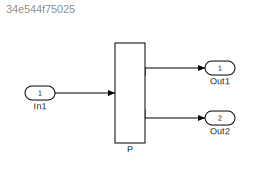
MODEL slx_34e544f75025
KIND model
CONFIG AbsTol = auto
CONFIG EnableMultiTasking = off
CONFIG FixedStep = auto
CONFIG MaxStep = auto
CONFIG MinStep = auto
CONFIG RelTol = 1e-3
CONFIG SampleTimeConstraint = Unconstrained
CONFIG Solver = FixedStepDiscrete
CONFIG SolverName = FixedStepDiscrete
CONFIG StartTime = 0.0
CONFIG StopTime = 10.0
BLOCK [Inport] In1
  IconDisplay = Port number
  PortDimensions = 3
BLOCK [Outport] Out1
  IconDisplay = Port number
BLOCK [Outport] Out2
  IconDisplay = Port number
  Port = 2
BLOCK [PreLookup] P
  BreakpointDataTypeStr = single
  BreakpointsData = [27.5259131366537 29.0259131366537 30.5259131366537 32.0259131366537 33.5259131366537 35.0259131366537 36.5259131366537 38.0259131366537 39.5259131366537 41.0259131366537 42.5259131366537 44.0259131366537 45.5259131366537 47.0259131366537 48.5259131366537 50.0259131366537 51.5259131366537 53.0259131366537 54.5259131366537 56.0259131366537 57.5259131366537 59.0259131366537 60.5259131366537 62.02591...<+417ch>
  ExtrapMethod = Linear
  FractionDataTypeStr = single
  IndexDataTypeStr = uint16
  InputPortMap = u0
  Ports = [1, 2]
  RndMeth = Nearest
  UseLastBreakpoint = on
LINE In1:1 -> P:1
LINE P:1 -> Out1:1
LINE P:2 -> Out2:1
